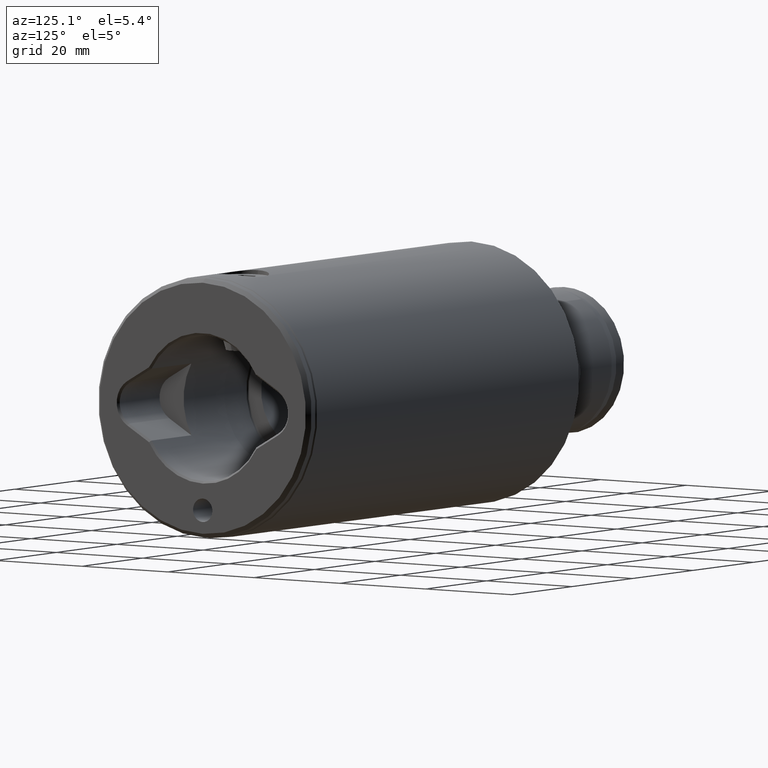
[diagram: clean part render]
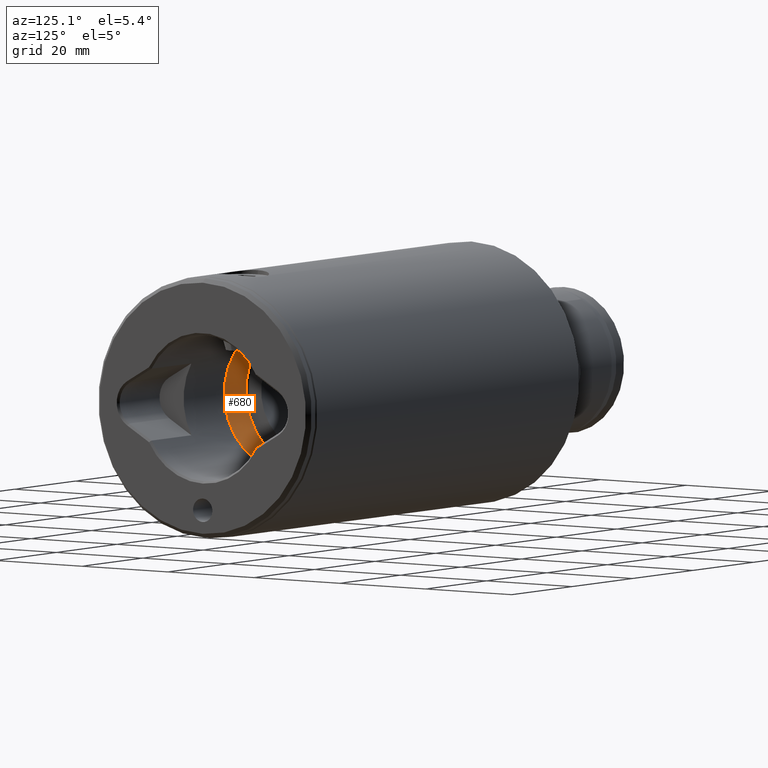
[diagram: same view with one face highlighted and labeled with its STEP entity id]
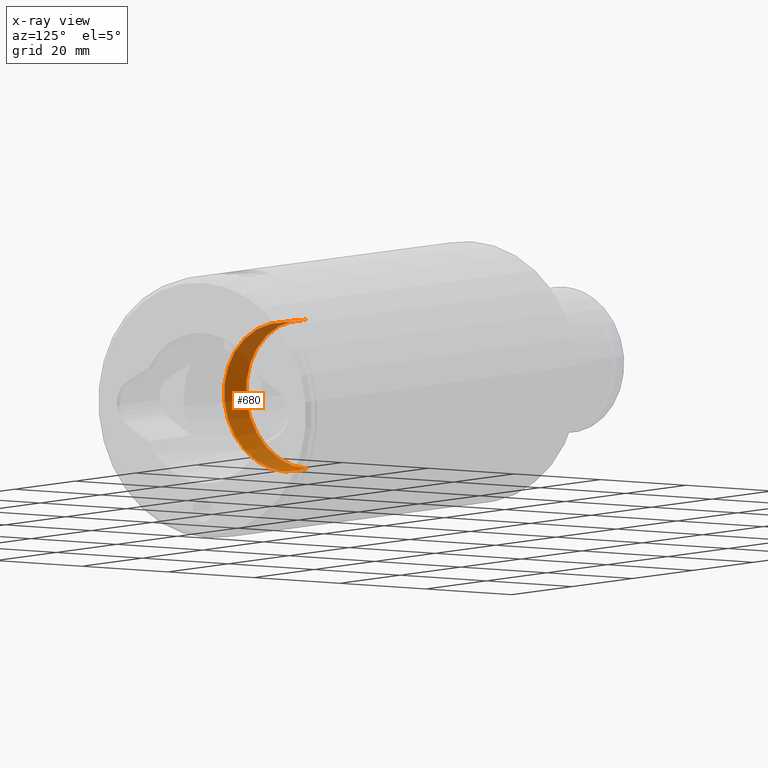
[diagram: x-ray of the same camera — body ghosted, the highlighted face saturated]
A machine part, auxiliary view. The second image highlights one B-rep face of the part: STEP entity #680.
The next image is the same camera in x-ray: the body ghosted, the highlighted face saturated — about 37% of this face is hidden behind the body in this view.
In plain terms, the highlighted cylindrical surface (partial cylindrical patch) has radius 14.25 mm, axis along (-1, 0, 0).
Its self-contained STEP definition (entity closure, byte-faithful):
#170 = DIRECTION ( 'NONE',  ( 0.0000000000000000000, 0.0000000000000000000, 1.000000000000000000 ) ) ;
#171 = CARTESIAN_POINT ( 'NONE',  ( 14.25000000000000000, 0.0000000000000000000, 27.37080992435478800 ) ) ;
#215 = DIRECTION ( 'NONE',  ( -1.000000000000000000, 0.0000000000000000000, 0.0000000000000000000 ) ) ;
#279 = CARTESIAN_POINT ( 'NONE',  ( -14.25000000000000000, 1.745121688784978200E-015, 27.37080992435478800 ) ) ;
#292 = CARTESIAN_POINT ( 'NONE',  ( 0.0000000000000000000, 0.0000000000000000000, 27.37080992435478800 ) ) ;
#310 = DIRECTION ( 'NONE',  ( 1.000000000000000000, 0.0000000000000000000, 0.0000000000000000000 ) ) ;
#422 = EDGE_CURVE ( 'NONE', #2071, #916, #2739, .T. ) ;
#526 = CARTESIAN_POINT ( 'NONE',  ( -14.25000000000000000, 1.745121688784978200E-015, 27.00000000000000400 ) ) ;
#547 = CIRCLE ( 'NONE', #628, 14.25000000000000000 ) ;
#628 = AXIS2_PLACEMENT_3D ( 'NONE', #292, #1851, #4479 ) ;
#680 = ADVANCED_FACE ( 'NONE', ( #3800 ), #2573, .F. ) ;
#782 = ORIENTED_EDGE ( 'NONE', *, *, #3564, .T. ) ;
#831 = CARTESIAN_POINT ( 'NONE',  ( -14.25000000000000000, 1.745121688784978200E-015, 34.60000000000000900 ) ) ;
#916 = VERTEX_POINT ( 'NONE', #831 ) ;
#951 = AXIS2_PLACEMENT_3D ( 'NONE', #2826, #1772, #215 ) ;
#1409 = AXIS2_PLACEMENT_3D ( 'NONE', #2536, #2909, #310 ) ;
#1694 = ORIENTED_EDGE ( 'NONE', *, *, #422, .T. ) ;
#1772 = DIRECTION ( 'NONE',  ( -0.0000000000000000000, -0.0000000000000000000, 1.000000000000000000 ) ) ;
#1851 = DIRECTION ( 'NONE',  ( 0.0000000000000000000, 0.0000000000000000000, -1.000000000000000000 ) ) ;
#1873 = VERTEX_POINT ( 'NONE', #171 ) ;
#2071 = VERTEX_POINT ( 'NONE', #279 ) ;
#2275 = EDGE_LOOP ( 'NONE', ( #782, #1694, #3971, #3181 ) ) ;
#2485 = CIRCLE ( 'NONE', #951, 14.25000000000000000 ) ;
#2536 = CARTESIAN_POINT ( 'NONE',  ( 0.0000000000000000000, 0.0000000000000000000, 27.00000000000000400 ) ) ;
#2573 = CYLINDRICAL_SURFACE ( 'NONE', #1409, 14.25000000000000000 ) ;
#2735 = EDGE_CURVE ( 'NONE', #1873, #4009, #4719, .T. ) ;
#2739 = LINE ( 'NONE', #526, #4617 ) ;
#2804 = DIRECTION ( 'NONE',  ( 0.0000000000000000000, 0.0000000000000000000, 1.000000000000000000 ) ) ;
#2826 = CARTESIAN_POINT ( 'NONE',  ( 0.0000000000000000000, 0.0000000000000000000, 34.60000000000000900 ) ) ;
#2909 = DIRECTION ( 'NONE',  ( 0.0000000000000000000, 0.0000000000000000000, 1.000000000000000000 ) ) ;
#3181 = ORIENTED_EDGE ( 'NONE', *, *, #2735, .F. ) ;
#3564 = EDGE_CURVE ( 'NONE', #1873, #2071, #547, .T. ) ;
#3800 = FACE_OUTER_BOUND ( 'NONE', #2275, .T. ) ;
#3971 = ORIENTED_EDGE ( 'NONE', *, *, #4406, .T. ) ;
#4009 = VERTEX_POINT ( 'NONE', #4436 ) ;
#4125 = VECTOR ( 'NONE', #2804, 1000.000000000000000 ) ;
#4269 = CARTESIAN_POINT ( 'NONE',  ( 14.25000000000000000, 0.0000000000000000000, 27.00000000000000400 ) ) ;
#4406 = EDGE_CURVE ( 'NONE', #916, #4009, #2485, .T. ) ;
#4436 = CARTESIAN_POINT ( 'NONE',  ( 14.25000000000000000, 0.0000000000000000000, 34.60000000000000900 ) ) ;
#4479 = DIRECTION ( 'NONE',  ( -1.000000000000000000, 0.0000000000000000000, 0.0000000000000000000 ) ) ;
#4617 = VECTOR ( 'NONE', #170, 1000.000000000000000 ) ;
#4719 = LINE ( 'NONE', #4269, #4125 ) ;